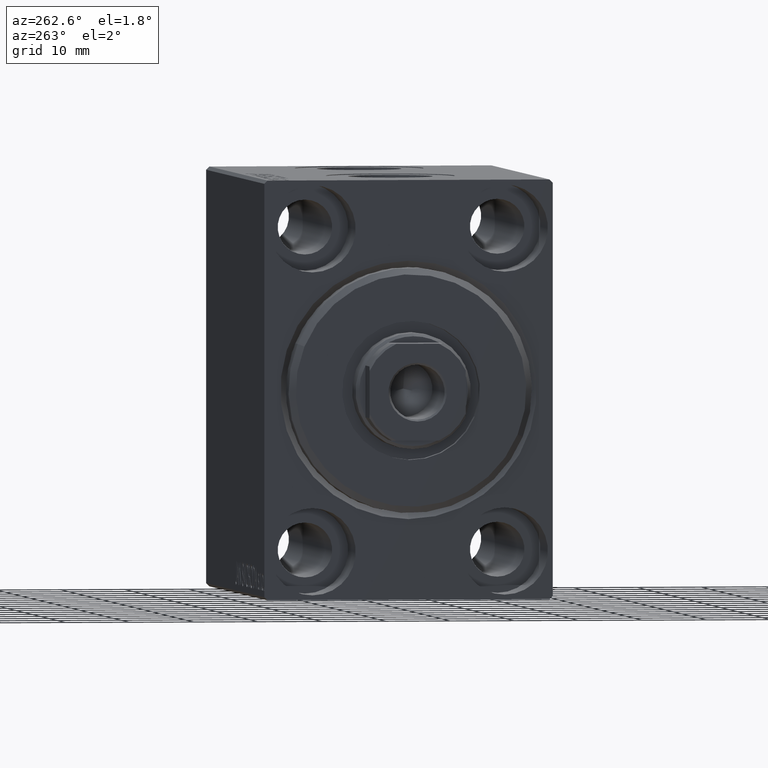
[diagram: clean part render]
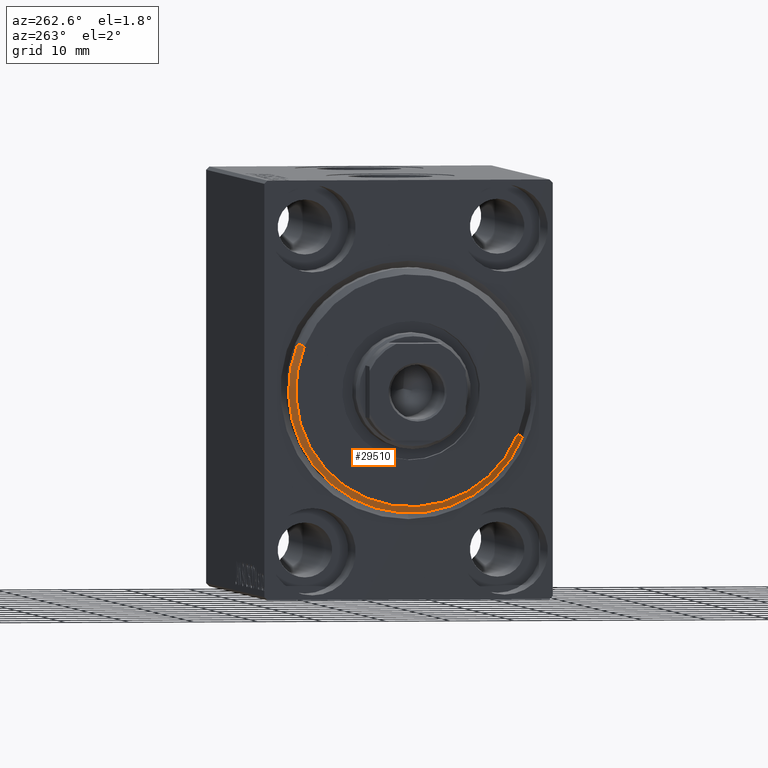
[diagram: same view with one face highlighted and labeled with its STEP entity id]
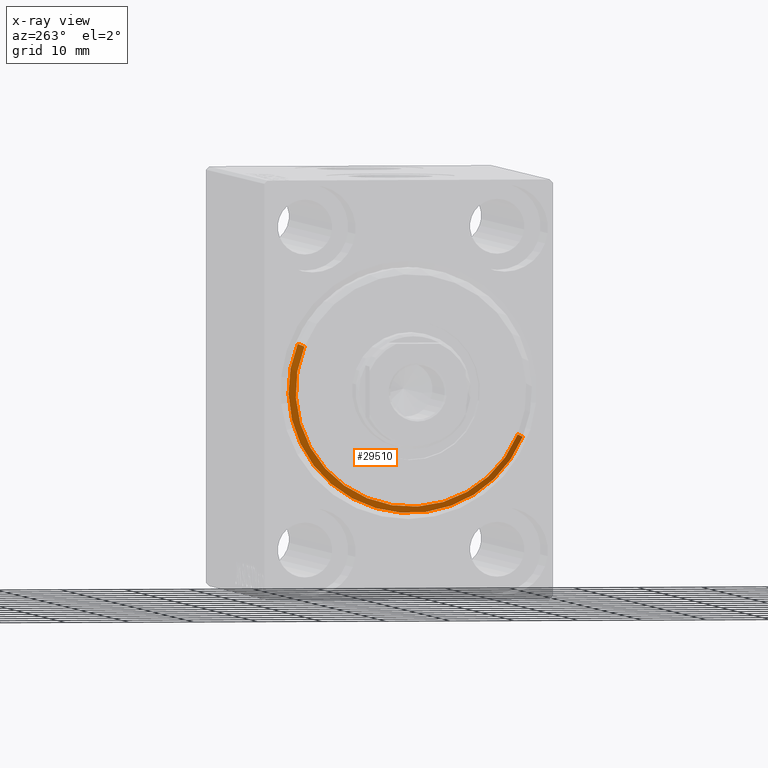
[diagram: x-ray of the same camera — body ghosted, the highlighted face saturated]
A machine part, auxiliary view. The second image highlights one B-rep face of the part: STEP entity #29510.
The next image is the same camera in x-ray: the body ghosted, the highlighted face saturated — about 0% of this face is hidden behind the body in this view.
In plain terms, the highlighted conical surface has half-angle 45 deg.
Its self-contained STEP definition (entity closure, byte-faithful):
#1531 = VERTEX_POINT ( 'NONE', #28193 ) ;
#1615 = ORIENTED_EDGE ( 'NONE', *, *, #10586, .F. ) ;
#2551 = LINE ( 'NONE', #29698, #9934 ) ;
#3002 = DIRECTION ( 'NONE',  ( -1.000000000000000000, 0.000000000000000000, 0.000000000000000000 ) ) ;
#3287 = ORIENTED_EDGE ( 'NONE', *, *, #39781, .F. ) ;
#6075 = ORIENTED_EDGE ( 'NONE', *, *, #35807, .F. ) ;
#7252 = VERTEX_POINT ( 'NONE', #25047 ) ;
#8451 = AXIS2_PLACEMENT_3D ( 'NONE', #35515, #28624, #32620 ) ;
#8642 = CIRCLE ( 'NONE', #34909, 19.00000000000000000 ) ;
#9934 = VECTOR ( 'NONE', #23252, 1000.000000000000000 ) ;
#10586 = EDGE_CURVE ( 'NONE', #7252, #30262, #2551, .T. ) ;
#10722 = AXIS2_PLACEMENT_3D ( 'NONE', #40061, #35855, #32747 ) ;
#14903 = EDGE_CURVE ( 'NONE', #30603, #1531, #25931, .T. ) ;
#17205 = ORIENTED_EDGE ( 'NONE', *, *, #14903, .T. ) ;
#19479 = CARTESIAN_POINT ( 'NONE',  ( 3.000000000000000000, 2.204364238465235033E-15, -17.99999999999999645 ) ) ;
#19498 = CARTESIAN_POINT ( 'NONE',  ( 3.000000000000000000, 2.265596578422603002E-15, -17.99999999999999645 ) ) ;
#20692 = CARTESIAN_POINT ( 'NONE',  ( 1.999999999999992228, 0.000000000000000000, 19.00000000000000000 ) ) ;
#21963 = CONICAL_SURFACE ( 'NONE', #8451, 17.99999999999999645, 0.7853981633974466137 ) ;
#23252 = DIRECTION ( 'NONE',  ( -0.7071067811865487940, 0.000000000000000000, 0.7071067811865463515 ) ) ;
#24567 = VECTOR ( 'NONE', #33042, 1000.000000000000000 ) ;
#25047 = CARTESIAN_POINT ( 'NONE',  ( 3.000000000000000000, 0.000000000000000000, 17.99999999999999645 ) ) ;
#25931 = LINE ( 'NONE', #19479, #24567 ) ;
#26499 = EDGE_LOOP ( 'NONE', ( #3287, #17205, #6075, #1615 ) ) ;
#28193 = CARTESIAN_POINT ( 'NONE',  ( 1.999999999999992228, 2.326828918379970970E-15, -19.00000000000000000 ) ) ;
#28624 = DIRECTION ( 'NONE',  ( -1.000000000000000000, 0.000000000000000000, 0.000000000000000000 ) ) ;
#29510 = ADVANCED_FACE ( 'NONE', ( #42856 ), #21963, .T. ) ;
#29698 = CARTESIAN_POINT ( 'NONE',  ( 3.000000000000000000, 0.000000000000000000, 17.99999999999999645 ) ) ;
#30262 = VERTEX_POINT ( 'NONE', #20692 ) ;
#30603 = VERTEX_POINT ( 'NONE', #19498 ) ;
#32061 = CIRCLE ( 'NONE', #10722, 17.99999999999999645 ) ;
#32620 = DIRECTION ( 'NONE',  ( 0.000000000000000000, 0.000000000000000000, 1.000000000000000000 ) ) ;
#32747 = DIRECTION ( 'NONE',  ( 0.000000000000000000, 0.000000000000000000, -1.000000000000000000 ) ) ;
#33042 = DIRECTION ( 'NONE',  ( -0.7071067811865487940, 8.659560562354918067E-17, -0.7071067811865463515 ) ) ;
#34909 = AXIS2_PLACEMENT_3D ( 'NONE', #40145, #3002, #43703 ) ;
#35515 = CARTESIAN_POINT ( 'NONE',  ( 3.000000000000000000, 0.000000000000000000, 0.000000000000000000 ) ) ;
#35807 = EDGE_CURVE ( 'NONE', #30262, #1531, #8642, .T. ) ;
#35855 = DIRECTION ( 'NONE',  ( 1.000000000000000000, -0.000000000000000000, 0.000000000000000000 ) ) ;
#39781 = EDGE_CURVE ( 'NONE', #30603, #7252, #32061, .T. ) ;
#40061 = CARTESIAN_POINT ( 'NONE',  ( 3.000000000000000000, 0.000000000000000000, 0.000000000000000000 ) ) ;
#40145 = CARTESIAN_POINT ( 'NONE',  ( 1.999999999999992228, 0.000000000000000000, 0.000000000000000000 ) ) ;
#42856 = FACE_OUTER_BOUND ( 'NONE', #26499, .T. ) ;
#43703 = DIRECTION ( 'NONE',  ( 0.000000000000000000, 0.000000000000000000, -1.000000000000000000 ) ) ;